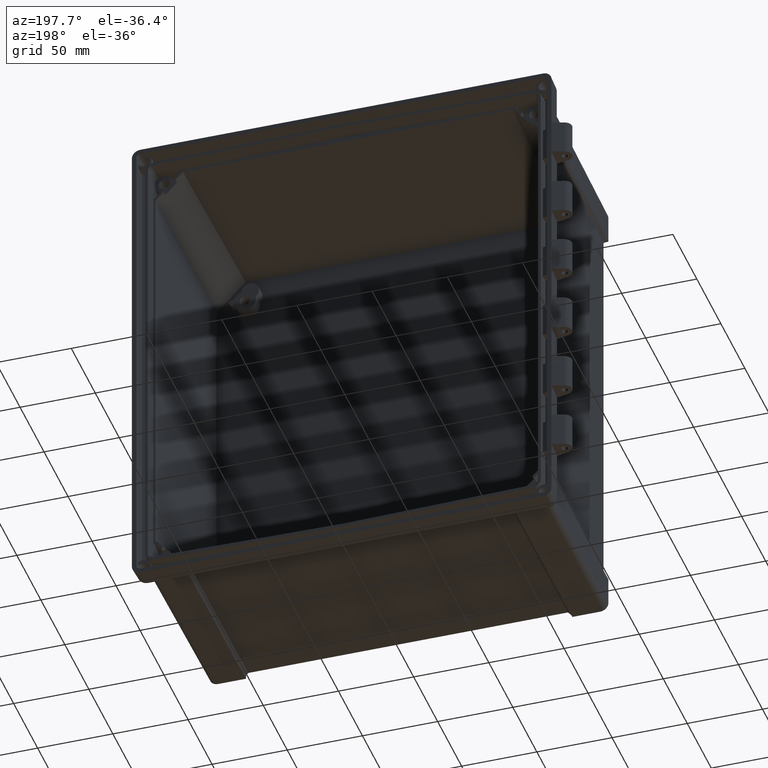
[diagram: clean part render]
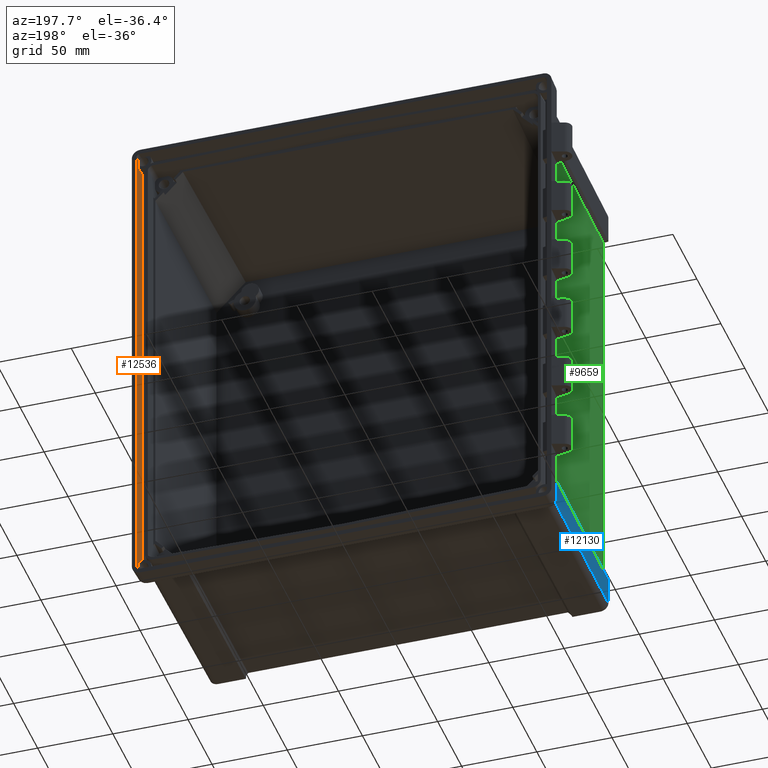
[diagram: same view with three faces highlighted in distinct colors, each labeled with its STEP entity id]
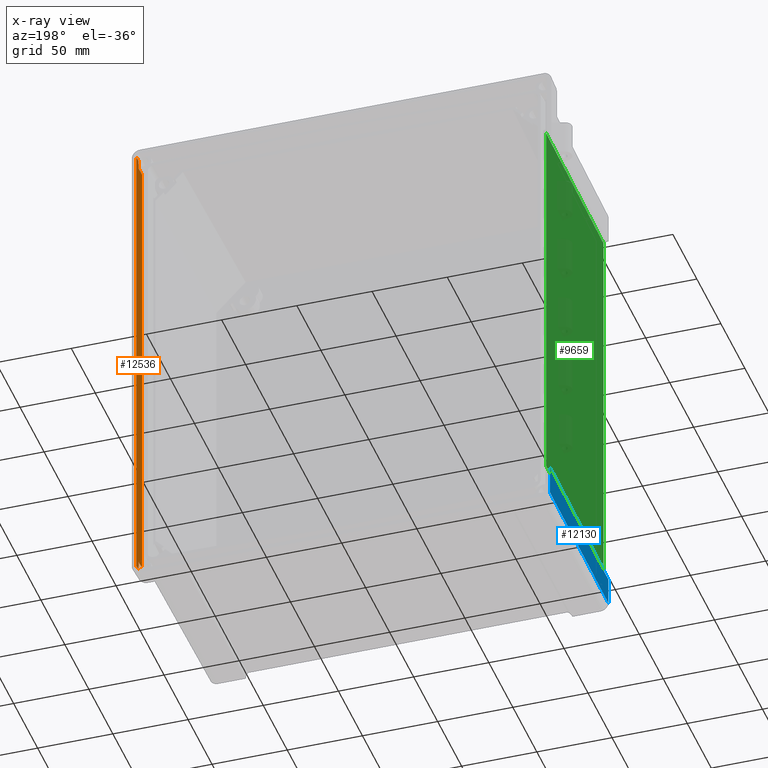
[diagram: x-ray of the same camera — body ghosted, the three highlighted faces saturated]
A machine part, auxiliary view with three faces highlighted in distinct colors.
The next image is the same camera in x-ray (body ghosted, the three faces saturated) — at least one of them is partly hidden behind the body in this view.
Their STEP definitions:

[orange] entity #12536 — the highlighted planar face has unit normal (0.9994, -0.0349, 0).
#153 = LINE ( 'NONE', #192, #191 ) ;
#154 = CARTESIAN_POINT ( 'NONE',  ( 136.0941774938481800, -10.52288663728130800, 154.6599535745250800 ) ) ;
#180 = CARTESIAN_POINT ( 'NONE',  ( 136.3219617145294900, -4.000000000000016000, 154.9378676888470900 ) ) ;
#181 = DIRECTION ( 'NONE',  ( 0.0000000000000000000, 0.0000000000000000000, -1.000000000000000000 ) ) ;
#182 = VECTOR ( 'NONE', #181, 1000.000000000000000 ) ;
#183 = CARTESIAN_POINT ( 'NONE',  ( 136.3219617145294900, -4.000000000000000000, -166.2634734253929000 ) ) ;
#184 = LINE ( 'NONE', #183, #182 ) ;
#190 = DIRECTION ( 'NONE',  ( 0.0000000000000000000, 0.0000000000000000000, -1.000000000000000000 ) ) ;
#191 = VECTOR ( 'NONE', #190, 1000.000000000000000 ) ;
#192 = CARTESIAN_POINT ( 'NONE',  ( 136.0941774938481800, -10.52288663728131000, -166.2634734253929000 ) ) ;
#2255 = CARTESIAN_POINT ( 'NONE',  ( 136.3219617145294900, -4.000000000000000000, 157.8227846815435400 ) ) ;
#2366 = CARTESIAN_POINT ( 'NONE',  ( 136.3219617145294900, -4.000000000000000000, -154.9378676888471200 ) ) ;
#2367 = CARTESIAN_POINT ( 'NONE',  ( 136.2482833654867100, -6.109871864656215100, -154.8438566507337300 ) ) ;
#2368 = CARTESIAN_POINT ( 'NONE',  ( 136.1723441504898600, -8.284486459411788000, -154.7512050192245600 ) ) ;
#2369 = CARTESIAN_POINT ( 'NONE',  ( 136.0941774938481800, -10.52288663728131000, -154.6599535745251000 ) ) ;
#2370 =( BOUNDED_CURVE ( )  B_SPLINE_CURVE ( 3, ( #2369, #2368, #2367, #2366 ),
 .UNSPECIFIED., .F., .T. ) 
 B_SPLINE_CURVE_WITH_KNOTS ( ( 4, 4 ),
 ( 2.503283453159429200, 2.545243515954628100 ),
 .UNSPECIFIED. ) 
 CURVE ( )  GEOMETRIC_REPRESENTATION_ITEM ( )  RATIONAL_B_SPLINE_CURVE ( ( 1.000000000000000000, 0.9998532848091712400, 0.9998532848091712400, 1.000000000000000000 ) ) 
 REPRESENTATION_ITEM ( '' )  );
#2564 = CARTESIAN_POINT ( 'NONE',  ( 136.0941774938481800, -10.52288663728131000, -154.6599535745251000 ) ) ;
#2571 = CARTESIAN_POINT ( 'NONE',  ( 136.3219617145294900, -4.000000000000000000, -154.9378676888471200 ) ) ;
#2982 = LINE ( 'NONE', #3022, #3021 ) ;
#2985 = CARTESIAN_POINT ( 'NONE',  ( 136.4616447924964900, 0.0000000000000000000, -160.7631677249486900 ) ) ;
#3019 = CARTESIAN_POINT ( 'NONE',  ( 136.4616447924964600, 0.0000000000000000000, 160.7631677249486600 ) ) ;
#3020 = DIRECTION ( 'NONE',  ( 0.0000000000000000000, 0.0000000000000000000, 1.000000000000000000 ) ) ;
#3021 = VECTOR ( 'NONE', #3020, 1000.000000000000000 ) ;
#3022 = CARTESIAN_POINT ( 'NONE',  ( 136.4616447924964900, 0.0000000000000000000, -166.2634734253929000 ) ) ;
#4261 = LINE ( 'NONE', #4286, #4285 ) ;
#4279 = DIRECTION ( 'NONE',  ( 0.0000000000000000000, 0.0000000000000000000, -1.000000000000000000 ) ) ;
#4280 = VECTOR ( 'NONE', #4279, 1000.000000000000000 ) ;
#4281 = CARTESIAN_POINT ( 'NONE',  ( 136.3219617145294900, -4.000000000000000000, -166.2634734253929000 ) ) ;
#4282 = LINE ( 'NONE', #4281, #4280 ) ;
#4283 = CARTESIAN_POINT ( 'NONE',  ( 136.3219617145294900, -4.000000000000000000, -157.8227846815435400 ) ) ;
#4284 = DIRECTION ( 'NONE',  ( 0.0000000000000000000, 0.0000000000000000000, -1.000000000000000000 ) ) ;
#4285 = VECTOR ( 'NONE', #4284, 1000.000000000000000 ) ;
#4286 = CARTESIAN_POINT ( 'NONE',  ( 136.3219617145294900, -4.000000000000000000, -166.2634734253929000 ) ) ;
#4317 = CARTESIAN_POINT ( 'NONE',  ( 136.3219617145294600, -4.000000000000000000, 160.6234846469816700 ) ) ;
#4318 = DIRECTION ( 'NONE',  ( 0.03489949670250104600, 0.9993908270190956500, 0.0000000000000000000 ) ) ;
#4319 = DIRECTION ( 'NONE',  ( 0.9993908270190957600, -0.03489949670250105200, 0.0000000000000000000 ) ) ;
#4320 = CARTESIAN_POINT ( 'NONE',  ( 136.4653009443356400, 0.1046984901075031500, -166.2634734253929000 ) ) ;
#4321 = AXIS2_PLACEMENT_3D ( 'NONE', #4320, #4319, #4318 ) ;
#4322 = PLANE ( 'NONE',  #4321 ) ;
#4323 = FACE_OUTER_BOUND ( 'NONE', #12537, .T. ) ;
#4436 = LINE ( 'NONE', #4471, #4470 ) ;
#4443 = CARTESIAN_POINT ( 'NONE',  ( 136.3219617145294900, -4.000000000000016000, 154.9378676888470900 ) ) ;
#4444 = CARTESIAN_POINT ( 'NONE',  ( 136.2482833654866900, -6.109871864656598800, 154.8438566507337300 ) ) ;
#4445 = CARTESIAN_POINT ( 'NONE',  ( 136.1723441504898300, -8.284486459412260500, 154.7512050192245300 ) ) ;
#4446 = CARTESIAN_POINT ( 'NONE',  ( 136.0941774938481800, -10.52288663728130800, 154.6599535745250800 ) ) ;
#4447 =( BOUNDED_CURVE ( )  B_SPLINE_CURVE ( 3, ( #4446, #4445, #4444, #4443 ),
 .UNSPECIFIED., .F., .F. ) 
 B_SPLINE_CURVE_WITH_KNOTS ( ( 4, 4 ),
 ( 2.503283453159426100, 2.545243515954625800 ),
 .UNSPECIFIED. ) 
 CURVE ( )  GEOMETRIC_REPRESENTATION_ITEM ( )  RATIONAL_B_SPLINE_CURVE ( ( 1.000000000000000000, 0.9998532848091712400, 0.9998532848091712400, 1.000000000000000000 ) ) 
 REPRESENTATION_ITEM ( '' )  );
#4460 = CARTESIAN_POINT ( 'NONE',  ( 136.3219617145295200, -4.000000000000000000, -160.6234846469817200 ) ) ;
#4461 = DIRECTION ( 'NONE',  ( 0.03487826274237469700, 0.9987827659587182900, -0.03487826274237469700 ) ) ;
#4462 = VECTOR ( 'NONE', #4461, 1000.000000000000100 ) ;
#4463 = CARTESIAN_POINT ( 'NONE',  ( 136.4719875811998700, 0.2961787169620380700, -160.7735105136521000 ) ) ;
#4464 = LINE ( 'NONE', #4463, #4462 ) ;
#4465 = DIRECTION ( 'NONE',  ( -0.03487826274237469700, -0.9987827659587182900, -0.03487826274237469700 ) ) ;
#4466 = VECTOR ( 'NONE', #4465, 1000.000000000000100 ) ;
#4467 = CARTESIAN_POINT ( 'NONE',  ( 136.1326748437325900, -9.420466775269831700, 160.4341977761848200 ) ) ;
#4468 = LINE ( 'NONE', #4467, #4466 ) ;
#4469 = DIRECTION ( 'NONE',  ( 0.0000000000000000000, 0.0000000000000000000, -1.000000000000000000 ) ) ;
#4470 = VECTOR ( 'NONE', #4469, 1000.000000000000000 ) ;
#4471 = CARTESIAN_POINT ( 'NONE',  ( 136.3219617145294900, -4.000000000000000000, -166.2634734253929000 ) ) ;
#10465 = VERTEX_POINT ( 'NONE', #154 ) ;
#10467 = EDGE_CURVE ( 'NONE', #10465, #11741, #153, .T. ) ;
#10473 = EDGE_CURVE ( 'NONE', #11589, #10474, #184, .T. ) ;
#10474 = VERTEX_POINT ( 'NONE', #180 ) ;
#11589 = VERTEX_POINT ( 'NONE', #2255 ) ;
#11650 = EDGE_CURVE ( 'NONE', #11741, #11734, #2370, .T. ) ;
#11734 = VERTEX_POINT ( 'NONE', #2571 ) ;
#11741 = VERTEX_POINT ( 'NONE', #2564 ) ;
#11962 = VERTEX_POINT ( 'NONE', #2985 ) ;
#11965 = EDGE_CURVE ( 'NONE', #11962, #11966, #2982, .T. ) ;
#11966 = VERTEX_POINT ( 'NONE', #3019 ) ;
#12521 = ORIENTED_EDGE ( 'NONE', *, *, #12522, .F. ) ;
#12522 = EDGE_CURVE ( 'NONE', #12523, #12604, #4261, .T. ) ;
#12523 = VERTEX_POINT ( 'NONE', #4283 ) ;
#12524 = ORIENTED_EDGE ( 'NONE', *, *, #12525, .F. ) ;
#12525 = EDGE_CURVE ( 'NONE', #11734, #12523, #4282, .T. ) ;
#12526 = ORIENTED_EDGE ( 'NONE', *, *, #11650, .F. ) ;
#12536 = ADVANCED_FACE ( 'NONE', ( #4323 ), #4322, .F. ) ;
#12537 = EDGE_LOOP ( 'NONE', ( #12538, #12599, #12601, #12602, #12521, #12524, #12526, #12586, #12587, #12589 ) ) ;
#12538 = ORIENTED_EDGE ( 'NONE', *, *, #12598, .F. ) ;
#12539 = VERTEX_POINT ( 'NONE', #4317 ) ;
#12586 = ORIENTED_EDGE ( 'NONE', *, *, #10467, .F. ) ;
#12587 = ORIENTED_EDGE ( 'NONE', *, *, #12588, .T. ) ;
#12588 = EDGE_CURVE ( 'NONE', #10465, #10474, #4447, .T. ) ;
#12589 = ORIENTED_EDGE ( 'NONE', *, *, #10473, .F. ) ;
#12598 = EDGE_CURVE ( 'NONE', #12539, #11589, #4436, .T. ) ;
#12599 = ORIENTED_EDGE ( 'NONE', *, *, #12600, .F. ) ;
#12600 = EDGE_CURVE ( 'NONE', #11966, #12539, #4468, .T. ) ;
#12601 = ORIENTED_EDGE ( 'NONE', *, *, #11965, .F. ) ;
#12602 = ORIENTED_EDGE ( 'NONE', *, *, #12603, .F. ) ;
#12603 = EDGE_CURVE ( 'NONE', #12604, #11962, #4464, .T. ) ;
#12604 = VERTEX_POINT ( 'NONE', #4460 ) ;

[blue] entity #12130 — the highlighted planar face has unit normal (-1, -0.0087, 0).
#698 = DIRECTION ( 'NONE',  ( -0.008726266127677972200, 0.9999310562397356600, 0.007857165312980510600 ) ) ;
#699 = VECTOR ( 'NONE', #698, 1000.000000000000100 ) ;
#700 = CARTESIAN_POINT ( 'NONE',  ( -132.5229667587653900, -138.6887765966205000, -132.9983973480162300 ) ) ;
#701 = LINE ( 'NONE', #700, #699 ) ;
#773 = CARTESIAN_POINT ( 'NONE',  ( -132.5071604515846100, -140.5000000000000000, -151.5073698747314700 ) ) ;
#774 = DIRECTION ( 'NONE',  ( 1.155149073600584600E-015, 0.0000000000000000000, 1.000000000000000000 ) ) ;
#775 = VECTOR ( 'NONE', #774, 1000.000000000000000 ) ;
#776 = CARTESIAN_POINT ( 'NONE',  ( -132.5071604515846100, -140.5000000000000000, -157.0246141871659200 ) ) ;
#777 = LINE ( 'NONE', #776, #775 ) ;
#827 = CARTESIAN_POINT ( 'NONE',  ( -132.5071604515845800, -140.5000000000000000, -133.0126294109272200 ) ) ;
#3068 = CARTESIAN_POINT ( 'NONE',  ( -133.6011417467239300, -15.14216012327063500, -133.1100616027112800 ) ) ;
#3069 = DIRECTION ( 'NONE',  ( 1.112286263379342100E-015, -2.364237437367062800E-016, 1.000000000000000000 ) ) ;
#3070 = VECTOR ( 'NONE', #3069, 1000.000000000000000 ) ;
#3071 = CARTESIAN_POINT ( 'NONE',  ( -133.6011417467239300, -15.14216012327059400, -166.2634734253926200 ) ) ;
#3077 = LINE ( 'NONE', #3071, #3070 ) ;
#3078 = CARTESIAN_POINT ( 'NONE',  ( -133.6011417467239300, -15.14216012327059600, -152.6013511698707800 ) ) ;
#3259 = FACE_OUTER_BOUND ( 'NONE', #12131, .T. ) ;
#3299 = DIRECTION ( 'NONE',  ( 0.008726203243944246800, -0.9999238504775704900, 0.008726203243944219100 ) ) ;
#3300 = VECTOR ( 'NONE', #3299, 1000.000000000000100 ) ;
#3301 = CARTESIAN_POINT ( 'NONE',  ( -133.6121487925991300, -13.88087759451953400, -152.6123582157459900 ) ) ;
#3302 = DIRECTION ( 'NONE',  ( 0.008726535498373953800, -0.9999619230641713100, 0.0000000000000000000 ) ) ;
#3303 = DIRECTION ( 'NONE',  ( -0.9999619230641713100, -0.008726535498373953800, 1.110180750734291300E-015 ) ) ;
#3304 = CARTESIAN_POINT ( 'NONE',  ( -133.6111092271156100, -14.00000000000000200, -166.2634734253926200 ) ) ;
#3305 = AXIS2_PLACEMENT_3D ( 'NONE', #3304, #3303, #3302 ) ;
#3306 = LINE ( 'NONE', #3301, #3300 ) ;
#3307 = PLANE ( 'NONE',  #3305 ) ;
#3404 = DIRECTION ( 'NONE',  ( -0.008726531827785093100, 0.9999615024563482900, -0.0009171954542808993500 ) ) ;
#3405 = VECTOR ( 'NONE', #3404, 999.9999999999998900 ) ;
#3406 = CARTESIAN_POINT ( 'NONE',  ( -133.6113745764944600, -13.96959397286110000, -133.1111371164588800 ) ) ;
#3407 = LINE ( 'NONE', #3406, #3405 ) ;
#10162 = VERTEX_POINT ( 'NONE', #18026 ) ;
#10753 = EDGE_CURVE ( 'NONE', #10834, #10162, #701, .T. ) ;
#10799 = EDGE_CURVE ( 'NONE', #10800, #10834, #777, .T. ) ;
#10800 = VERTEX_POINT ( 'NONE', #773 ) ;
#10834 = VERTEX_POINT ( 'NONE', #827 ) ;
#12007 = VERTEX_POINT ( 'NONE', #3078 ) ;
#12009 = EDGE_CURVE ( 'NONE', #12007, #12010, #3077, .T. ) ;
#12010 = VERTEX_POINT ( 'NONE', #3068 ) ;
#12130 = ADVANCED_FACE ( 'NONE', ( #3259 ), #3307, .T. ) ;
#12131 = EDGE_LOOP ( 'NONE', ( #12132, #12133, #12135, #12194, #12195 ) ) ;
#12132 = ORIENTED_EDGE ( 'NONE', *, *, #12009, .F. ) ;
#12133 = ORIENTED_EDGE ( 'NONE', *, *, #12134, .T. ) ;
#12134 = EDGE_CURVE ( 'NONE', #12007, #10800, #3306, .T. ) ;
#12135 = ORIENTED_EDGE ( 'NONE', *, *, #10799, .T. ) ;
#12194 = ORIENTED_EDGE ( 'NONE', *, *, #10753, .T. ) ;
#12195 = ORIENTED_EDGE ( 'NONE', *, *, #12196, .T. ) ;
#12196 = EDGE_CURVE ( 'NONE', #10162, #12010, #3407, .T. ) ;
#18026 = CARTESIAN_POINT ( 'NONE',  ( -132.5246141871660900, -138.5000000000000000, -132.9969139968215500 ) ) ;

[green] entity #9659 — the highlighted planar face has unit normal (-1, -0.0087, 0).
#9633 = ORIENTED_EDGE ( 'NONE', *, *, #9634, .F. ) ;
#9634 = EDGE_CURVE ( 'NONE', #9635, #10156, #17014, .T. ) ;
#9635 = VERTEX_POINT ( 'NONE', #17061 ) ;
#9636 = ORIENTED_EDGE ( 'NONE', *, *, #9637, .T. ) ;
#9637 = EDGE_CURVE ( 'NONE', #9635, #9638, #17046, .T. ) ;
#9638 = VERTEX_POINT ( 'NONE', #17042 ) ;
#9639 = ORIENTED_EDGE ( 'NONE', *, *, #9640, .F. ) ;
#9640 = EDGE_CURVE ( 'NONE', #10159, #9638, #17041, .T. ) ;
#9641 = ORIENTED_EDGE ( 'NONE', *, *, #10158, .F. ) ;
#9659 = ADVANCED_FACE ( 'NONE', ( #17077 ), #17076, .T. ) ;
#9660 = EDGE_LOOP ( 'NONE', ( #9633, #9636, #9639, #9641 ) ) ;
#10156 = VERTEX_POINT ( 'NONE', #17980 ) ;
#10158 = EDGE_CURVE ( 'NONE', #10156, #10159, #17979, .T. ) ;
#10159 = VERTEX_POINT ( 'NONE', #18031 ) ;
#17014 = LINE ( 'NONE', #17064, #17063 ) ;
#17038 = DIRECTION ( 'NONE',  ( -0.008726531827788399500, 0.9999615024563482900, -0.0009171954542835958600 ) ) ;
#17039 = VECTOR ( 'NONE', #17038, 999.9999999999998900 ) ;
#17040 = CARTESIAN_POINT ( 'NONE',  ( -130.9517580553055900, -15.68233188195518900, -130.9064528201773500 ) ) ;
#17041 = LINE ( 'NONE', #17040, #17039 ) ;
#17042 = CARTESIAN_POINT ( 'NONE',  ( -130.9515572080079300, -15.70534670267411500, -130.9064317102756500 ) ) ;
#17043 = DIRECTION ( 'NONE',  ( -8.962543548058904900E-017, 1.905047440393214900E-017, -1.000000000000000000 ) ) ;
#17044 = VECTOR ( 'NONE', #17043, 1000.000000000000000 ) ;
#17045 = CARTESIAN_POINT ( 'NONE',  ( -130.9515572080079600, -15.70534670267410400, -156.0000000000000000 ) ) ;
#17046 = LINE ( 'NONE', #17045, #17044 ) ;
#17061 = CARTESIAN_POINT ( 'NONE',  ( -130.9515572080079300, -15.70534670267411500, 130.9064317102756500 ) ) ;
#17062 = DIRECTION ( 'NONE',  ( 0.008726531827788399500, -0.9999615024563482900, -0.0009171954542829221400 ) ) ;
#17063 = VECTOR ( 'NONE', #17062, 999.9999999999998900 ) ;
#17064 = CARTESIAN_POINT ( 'NONE',  ( -130.9492608274844700, -15.96848584704260400, 130.9061903509568800 ) ) ;
#17072 = DIRECTION ( 'NONE',  ( 0.008726535498377261900, -0.9999619230641712000, 0.0000000000000000000 ) ) ;
#17073 = DIRECTION ( 'NONE',  ( -0.9999619230641713100, -0.008726535498377263600, 8.945577817748681000E-017 ) ) ;
#17074 = CARTESIAN_POINT ( 'NONE',  ( -130.9515572080079600, -15.70534670267410400, -156.0000000000000000 ) ) ;
#17075 = AXIS2_PLACEMENT_3D ( 'NONE', #17074, #17073, #17072 ) ;
#17076 = PLANE ( 'NONE',  #17075 ) ;
#17077 = FACE_OUTER_BOUND ( 'NONE', #9660, .T. ) ;
#17977 = VECTOR ( 'NONE', #18032, 1000.000000000000000 ) ;
#17978 = CARTESIAN_POINT ( 'NONE',  ( -129.8799445032697400, -138.5000000000000000, -156.0000000000000000 ) ) ;
#17979 = LINE ( 'NONE', #17978, #17977 ) ;
#17980 = CARTESIAN_POINT ( 'NONE',  ( -129.8799445032697100, -138.5000000000000000, 130.7938006764430000 ) ) ;
#18031 = CARTESIAN_POINT ( 'NONE',  ( -129.8799445032697400, -138.5000000000000000, -130.7938006764429400 ) ) ;
#18032 = DIRECTION ( 'NONE',  ( -8.945918450911463900E-017, 0.0000000000000000000, -1.000000000000000000 ) ) ;